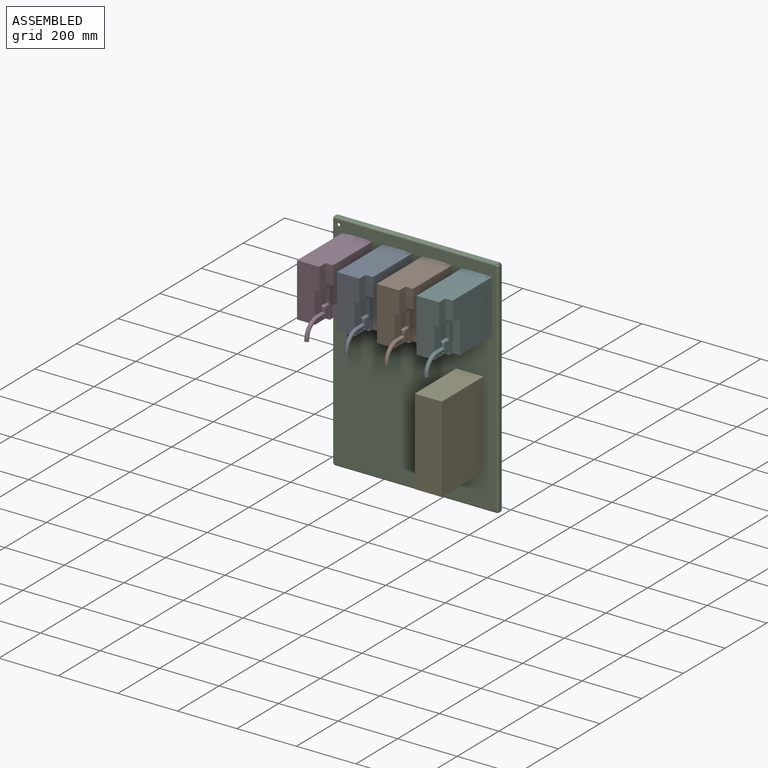
[diagram: assembled view]
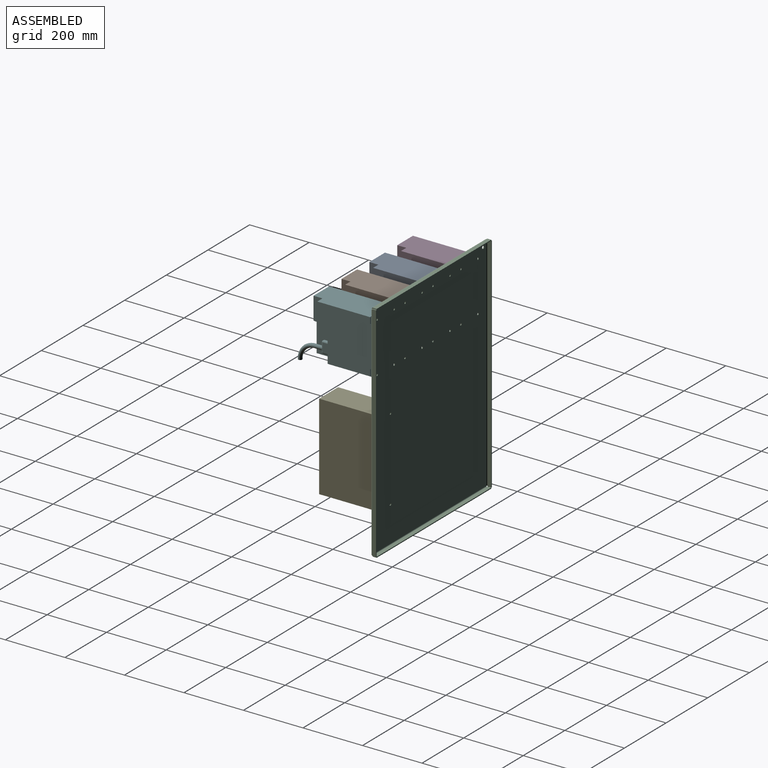
[diagram: assembled view, second angle]
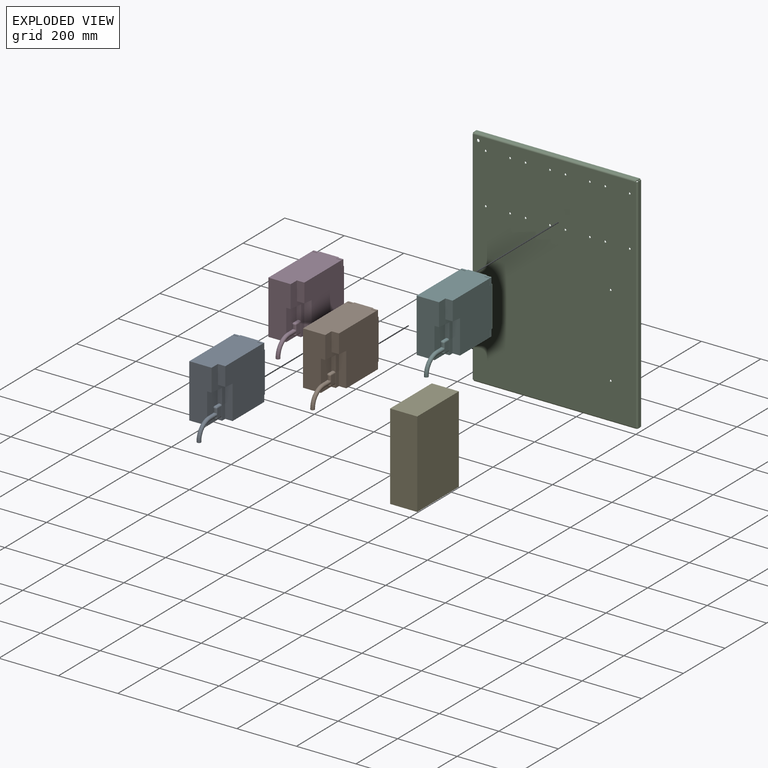
[diagram: exploded view]
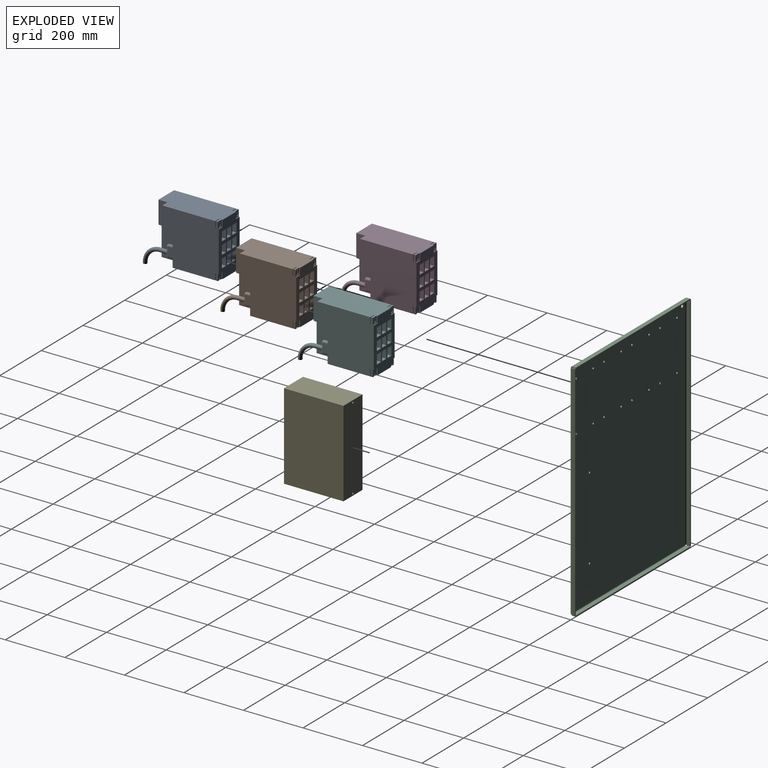
[diagram: exploded view, second angle]
ASSEMBLY  parts=6 mates=5
PART A: 136 faces, bbox 281.2x100x208.6 mm
  f0: plane 100x15mm, normal (1,0,0), area 1001.5mm2, adj f3,f53,f54,f58,f105,f107,f108,f109
  f1: plane 180x100mm, normal (-1,0,0), area 11016mm2, adj f2,f3,f4,f5,f15,f16,f18,f19
  f2: plane 220x100mm, normal (0,0,1), area 21070mm2, adj f1,f4,f5,f12,f16,f17,f18,f20
  f3: plane 220x100mm, normal (0,0,-1), area 19421mm2, adj f0,f1,f4,f5,f6,f7,f9,f10
  f4: plane 220x180mm, normal (0,-1,0), area 39380mm2, adj f1,f2,f3,f12,f19,f20,f22,f23
  f5: plane 190x180mm, normal (0,1,0), area 29945.3mm2, adj f1,f2,f3,f15,f17,f25,f26,f37
  f6: plane 6x2mm, normal (0,1,0), area 12mm2, adj f3,f8,f13,f26
  f7: plane 6x2mm, normal (0,-1,0), area 12mm2, adj f3,f8,f13,f26
  f8: cylinder r=3mm len=6mm, axis (-1,0,0), area 18.8mm2, adj f6,f7,f13,f26
  f9: plane 6x2mm, normal (0,1,0), area 12mm2, adj f3,f11,f14,f23
  f10: plane 6x2mm, normal (0,-1,0), area 12mm2, adj f3,f11,f14,f23
  f11: cylinder r=3mm len=6mm, axis (-1,0,0), area 18.8mm2, adj f9,f10,f14,f23
  f12: plane 180x75mm, normal (1,0,0), area 11934.4mm2, adj f2,f3,f4,f53,f54,f58
  f13: plane 9x6mm, normal (-1,0,0), area 50.1mm2, adj f3,f6,f7,f8
  f14: plane 9x6mm, normal (-1,0,0), area 50.1mm2, adj f3,f9,f10,f11
  f15: plane 18x3mm, normal (0,0,1), area 54mm2, adj f1,f5,f16,f17
  f16: plane 22x3mm, normal (0,1,0), area 66mm2, adj f1,f2,f15,f17
  f17: plane 22x18mm, normal (-1,0,0), area 270.8mm2, adj f2,f5,f15,f16,f28,f29,f30,f31
  f18: plane 22x3mm, normal (0,-1,0), area 66mm2, adj f1,f2,f19,f20
  f19: plane 18x3mm, normal (0,0,1), area 54mm2, adj f1,f4,f18,f20
  f20: plane 22x18mm, normal (-1,0,0), area 270.8mm2, adj f2,f4,f18,f19,f33,f34,f35,f36
  f21: plane 22x3mm, normal (0,-1,0), area 66mm2, adj f1,f3,f22,f23
  f22: plane 18x3mm, normal (0,0,-1), area 54mm2, adj f1,f4,f21,f23
  f23: plane 22x18mm, normal (-1,0,0), area 345.9mm2, adj f3,f4,f9,f10,f11,f21,f22
  f24: plane 22x3mm, normal (0,1,0), area 66mm2, adj f1,f3,f25,f26
  f25: plane 18x3mm, normal (0,0,-1), area 54mm2, adj f1,f5,f24,f26
  f26: plane 22x18mm, normal (-1,0,0), area 345.9mm2, adj f3,f5,f6,f7,f8,f24,f25
  f27: plane 16.5x11mm, normal (-1,0,0), area 125.2mm2, adj f28,f29,f30,f31
  f28: cylinder r=5.5mm len=11mm, axis (-1,0,0), area 52.8mm2, adj f17,f27,f29,f31
  f29: cylinder r=3mm len=3.08mm, axis (-1,0,0), area 6.7mm2, adj f17,f27,f28,f30
  f30: cylinder r=3mm len=6mm, axis (-1,0,0), area 22.4mm2, adj f17,f27,f29,f31
  f31: cylinder r=3mm len=3.08mm, axis (-1,0,0), area 6.7mm2, adj f17,f27,f28,f30
  f32: plane 16.5x11mm, normal (-1,0,0), area 125.2mm2, adj f33,f34,f35,f36
  f33: cylinder r=3mm len=3.08mm, axis (-1,0,0), area 6.7mm2, adj f20,f32,f34,f36
  f34: cylinder r=3mm len=6mm, axis (-1,0,0), area 22.4mm2, adj f20,f32,f33,f35
  f35: cylinder r=3mm len=3.08mm, axis (-1,0,0), area 6.7mm2, adj f20,f32,f34,f36
  f36: cylinder r=5.5mm len=11mm, axis (-1,0,0), area 52.8mm2, adj f20,f32,f33,f35
  f37: plane 18x2mm, normal (0,0,1), area 36mm2, adj f5,f38,f39,f40
  f38: plane 22x2mm, normal (0,1,0), area 44mm2, adj f2,f37,f39,f40
  f39: plane 22x18mm, normal (-1,0,0), area 396mm2, adj f2,f5,f37,f38
  f40: plane 22x18mm, normal (1,0,0), area 396mm2, adj f2,f5,f37,f38
  f41: plane 22x2mm, normal (0,1,0), area 44mm2, adj f3,f42,f43,f44
  f42: plane 18x2mm, normal (0,0,-1), area 36mm2, adj f5,f41,f43,f44
  f43: plane 22x18mm, normal (-1,0,0), area 396mm2, adj f3,f5,f41,f42
  f44: plane 22x18mm, normal (1,0,0), area 396mm2, adj f3,f5,f41,f42
  f45: plane 18x2mm, normal (0,0,1), area 36mm2, adj f4,f46,f47,f48
  f46: plane 22x2mm, normal (0,-1,0), area 44mm2, adj f2,f45,f47,f48
  f47: plane 22x18mm, normal (-1,0,0), area 396mm2, adj f2,f4,f45,f46
  f48: plane 22x18mm, normal (1,0,0), area 396mm2, adj f2,f4,f45,f46
  f49: plane 22x2mm, normal (0,-1,0), area 44mm2, adj f3,f50,f51,f52
  f50: plane 22x18mm, normal (-1,0,0), area 396mm2, adj f3,f4,f49,f52
  f51: plane 22x18mm, normal (1,0,0), area 396mm2, adj f3,f4,f49,f52
  f52: plane 18x2mm, normal (0,0,-1), area 36mm2, adj f4,f49,f50,f51
  f53: plane 104.37x50mm, normal (0,1,0), area 5109.4mm2, adj f0,f3,f12,f54
  f54: plane 50x15mm, normal (0.09,0,-1), area 752.9mm2, adj f0,f12,f53,f58
  f55: plane 113.75x25mm, normal (1,0,0), area 2843.6mm2, adj f3,f5,f56,f58
  f56: plane 35x25mm, normal (0.09,0,-1), area 878.3mm2, adj f5,f55,f57,f58
  f57: plane 63.19x25mm, normal (1,0,0), area 1579.8mm2, adj f2,f5,f56,f58
  f58: plane 180x65mm, normal (0,1,0), area 4325.3mm2, adj f0,f2,f3,f12,f54,f55,f56,f57
  f59: plane 20x15mm, normal (0,0,-1), area 300mm2, adj f1,f60,f62,f63
  f60: plane 30x15mm, normal (0,-1,0), area 450mm2, adj f1,f59,f61,f63
  f61: plane 20x15mm, normal (0,0,1), area 300mm2, adj f1,f60,f62,f63
  f62: plane 30x15mm, normal (0,1,0), area 450mm2, adj f1,f59,f61,f63
  f63: plane 30x20mm, normal (-1,0,0), area 600mm2, adj f59,f60,f61,f62
  f64: plane 20x15mm, normal (0,0,-1), area 300mm2, adj f1,f65,f67,f68
  f65: plane 30x15mm, normal (0,-1,0), area 450mm2, adj f1,f64,f66,f68
  f66: plane 20x15mm, normal (0,0,1), area 300mm2, adj f1,f65,f67,f68
  f67: plane 30x15mm, normal (0,1,0), area 450mm2, adj f1,f64,f66,f68
  f68: plane 30x20mm, normal (-1,0,0), area 600mm2, adj f64,f65,f66,f67
  f69: plane 20x15mm, normal (0,0,-1), area 300mm2, adj f1,f70,f72,f73
  f70: plane 30x15mm, normal (0,-1,0), area 450mm2, adj f1,f69,f71,f73
  f71: plane 20x15mm, normal (0,0,1), area 300mm2, adj f1,f70,f72,f73
  f72: plane 30x15mm, normal (0,1,0), area 450mm2, adj f1,f69,f71,f73
  f73: plane 30x20mm, normal (-1,0,0), area 600mm2, adj f69,f70,f71,f72
  f74: plane 20x15mm, normal (0,0,-1), area 300mm2, adj f1,f75,f77,f78
  f75: plane 30x15mm, normal (0,-1,0), area 450mm2, adj f1,f74,f76,f78
  f76: plane 20x15mm, normal (0,0,1), area 300mm2, adj f1,f75,f77,f78
  f77: plane 30x15mm, normal (0,1,0), area 450mm2, adj f1,f74,f76,f78
  f78: plane 30x20mm, normal (-1,0,0), area 600mm2, adj f74,f75,f76,f77
  f79: plane 30x15mm, normal (0,1,0), area 450mm2, adj f1,f80,f82,f83
  f80: plane 20x15mm, normal (0,0,-1), area 300mm2, adj f1,f79,f81,f83
  f81: plane 30x15mm, normal (0,-1,0), area 450mm2, adj f1,f80,f82,f83
  f82: plane 20x15mm, normal (0,0,1), area 300mm2, adj f1,f79,f81,f83
  f83: plane 30x20mm, normal (-1,0,0), area 600mm2, adj f79,f80,f81,f82
  f84: plane 20x15mm, normal (0,0,-1), area 300mm2, adj f1,f85,f87,f88
  f85: plane 30x15mm, normal (0,-1,0), area 450mm2, adj f1,f84,f86,f88
  f86: plane 20x15mm, normal (0,0,1), area 300mm2, adj f1,f85,f87,f88
  f87: plane 30x15mm, normal (0,1,0), area 450mm2, adj f1,f84,f86,f88
  f88: plane 30x20mm, normal (-1,0,0), area 600mm2, adj f84,f85,f86,f87
  f89: plane 20x15mm, normal (0,0,1), area 300mm2, adj f1,f90,f92,f93
  f90: plane 30x15mm, normal (0,1,0), area 450mm2, adj f1,f89,f91,f93
  f91: plane 20x15mm, normal (0,0,-1), area 300mm2, adj f1,f90,f92,f93
  f92: plane 30x15mm, normal (0,-1,0), area 450mm2, adj f1,f89,f91,f93
  f93: plane 30x20mm, normal (-1,0,0), area 600mm2, adj f89,f90,f91,f92
  f94: plane 20x15mm, normal (0,0,-1), area 300mm2, adj f1,f95,f97,f98
  f95: plane 30x15mm, normal (0,-1,0), area 450mm2, adj f1,f94,f96,f98
  f96: plane 20x15mm, normal (0,0,1), area 300mm2, adj f1,f95,f97,f98
  f97: plane 30x15mm, normal (0,1,0), area 450mm2, adj f1,f94,f96,f98
  f98: plane 30x20mm, normal (-1,0,0), area 600mm2, adj f94,f95,f96,f97
  f99: plane 20x15mm, normal (0,0,-1), area 300mm2, adj f1,f100,f102,f103
  f100: plane 30x15mm, normal (0,-1,0), area 450mm2, adj f1,f99,f101,f103
  f101: plane 20x15mm, normal (0,0,1), area 300mm2, adj f1,f100,f102,f103
  f102: plane 30x15mm, normal (0,1,0), area 450mm2, adj f1,f99,f101,f103
  f103: plane 30x20mm, normal (-1,0,0), area 600mm2, adj f99,f100,f101,f102
  f104: plane 13.68x3mm, normal (1,0,0), area 40.7mm2, adj f116,f129,f132,f133
  f105: plane 20x3mm, normal (0,0,1), area 60mm2, adj f0,f128,f132,f135
  f106: plane 3.68x3mm, normal (1,0,0), area 10.7mm2, adj f116,f120,f123,f125
  f107: plane 20x3mm, normal (0,0,-1), area 60mm2, adj f0,f119,f122,f123
  f108: plane 30x25mm, normal (0,-1,0), area 618.9mm2, adj f0,f118,f119,f120,f131,f133,f135
  f109: plane 30x25mm, normal (0,1,0), area 618.9mm2, adj f0,f122,f125,f126,f127,f128,f129
  f110: cylinder r=4.5mm len=9mm, axis (0,0,-1), area 101.8mm2, adj f111,f113
  f111: torus R=50mm, axis (0,1,0), area 2220.7mm2, adj f110,f112
  f112: cylinder r=4.5mm len=25mm, axis (1,0,0), area 706.9mm2, adj f111,f117
  f113: plane 13x13mm, normal (0,0,-1), area 69.1mm2, adj f110,f114
  f114: cylinder r=6.5mm len=13mm, axis (0,0,-1), area 147.1mm2, adj f113,f115
  f115: torus R=50mm, axis (0,1,0), area 3207.6mm2, adj f114,f116
  f116: cylinder r=6.5mm len=25mm, axis (1,0,0), area 1021mm2, adj f104,f106,f115,f118,f126,f127,f131
  f117: plane 9x9mm, normal (1,0,0), area 63.6mm2, adj f112
  f118: bspline ~6.95x5.14mm, area 25.7mm2, adj f108,f116,f120
  f119: cylinder r=5mm len=20mm, axis (1,0,0), area 157.1mm2, adj f0,f107,f108,f121
  f120: cylinder r=5mm len=5mm, axis (0,0,1), area 28.9mm2, adj f106,f108,f118,f121
  f121: sphere r=5mm, area 39.3mm2, adj f119,f120,f123
  f122: cylinder r=5mm len=20mm, axis (-1,0,0), area 157.1mm2, adj f0,f107,f109,f124
  f123: cylinder r=5mm len=5mm, axis (0,-1,0), area 23.6mm2, adj f106,f107,f121,f124
  f124: sphere r=5mm, area 39.3mm2, adj f122,f123,f125
  f125: cylinder r=5mm len=5mm, axis (0,0,-1), area 28.9mm2, adj f106,f109,f124,f126
  f126: bspline ~6.95x5.14mm, area 25.7mm2, adj f109,f116,f125
  f127: bspline ~6.95x5.14mm, area 25.7mm2, adj f109,f116,f129
  f128: cylinder r=5mm len=20mm, axis (1,0,0), area 157.1mm2, adj f0,f105,f109,f130
  f129: cylinder r=5mm len=13.68mm, axis (0,0,-1), area 107.4mm2, adj f104,f109,f127,f130
  f130: sphere r=5mm, area 39.3mm2, adj f128,f129,f132
  f131: bspline ~6.95x5.14mm, area 25.7mm2, adj f108,f116,f133
  f132: cylinder r=5mm len=5mm, axis (0,1,0), area 23.6mm2, adj f104,f105,f130,f134
  f133: cylinder r=5mm len=13.68mm, axis (0,0,1), area 107.4mm2, adj f104,f108,f131,f134
  f134: sphere r=5mm, area 39.3mm2, adj f132,f133,f135
  f135: cylinder r=5mm len=20mm, axis (-1,0,0), area 157.1mm2, adj f0,f105,f108,f134
PART B: same geometry as A
PART C: 65 faces, bbox 556x18x756 mm
  f0: plane 3x2.28mm, normal (0,-1,0), area 6.8mm2, adj f4,f5,f6,f62
  f1: plane 3x2.28mm, normal (0,-1,0), area 6.8mm2, adj f2,f5,f6,f61
  f2: plane 12.7x3mm, normal (1,0,0), area 38.1mm2, adj f1,f3,f5,f6
  f3: plane 549.96x3mm, normal (0,1,0), area 1649.9mm2, adj f2,f4,f5,f6
  f4: plane 12.7x3mm, normal (-1,0,0), area 38.1mm2, adj f0,f3,f5,f6
  f5: plane 549.96x12.7mm, normal (0,0,1), area 6984.5mm2, adj f0,f1,f2,f3,f4,f63
  f6: plane 549.96x12.7mm, normal (0,0,-1), area 6984.5mm2, adj f0,f1,f2,f3,f4,f64
  f7: cylinder r=3.5mm len=7mm, axis (0,-1,0), area 66mm2, adj f26,f27
  f8: cylinder r=3.5mm len=7mm, axis (0,-1,0), area 66mm2, adj f26,f27
  f9: cylinder r=3.5mm len=7mm, axis (0,-1,0), area 66mm2, adj f26,f27
  f10: cylinder r=3.5mm len=7mm, axis (0,-1,0), area 66mm2, adj f26,f27
  f11: cylinder r=3.5mm len=7mm, axis (0,-1,0), area 66mm2, adj f26,f27
  f12: cylinder r=3.5mm len=7mm, axis (0,-1,0), area 66mm2, adj f26,f27
  f13: cylinder r=3.5mm len=7mm, axis (0,-1,0), area 66mm2, adj f26,f27
  f14: cylinder r=3.5mm len=7mm, axis (0,-1,0), area 66mm2, adj f26,f27
  f15: cylinder r=3.5mm len=7mm, axis (0,-1,0), area 66mm2, adj f26,f27
  f16: cylinder r=3.5mm len=7mm, axis (0,-1,0), area 66mm2, adj f26,f27
  f17: cylinder r=3.5mm len=7mm, axis (0,-1,0), area 66mm2, adj f26,f27
  f18: cylinder r=3.5mm len=7mm, axis (0,-1,0), area 66mm2, adj f26,f27
  f19: cylinder r=3.5mm len=7mm, axis (0,-1,0), area 66mm2, adj f26,f27
  f20: cylinder r=3.5mm len=7mm, axis (0,-1,0), area 66mm2, adj f26,f27
  f21: cylinder r=3.5mm len=7mm, axis (0,-1,0), area 66mm2, adj f26,f27
  f22: cylinder r=3.5mm len=7mm, axis (0,-1,0), area 66mm2, adj f26,f27
  f23: cylinder r=3.5mm len=7mm, axis (0,-1,0), area 66mm2, adj f26,f27
  f24: cylinder r=3.5mm len=7mm, axis (0,-1,0), area 66mm2, adj f26,f27
  f25: cylinder r=5mm len=10mm, axis (0,-1,0), area 94.2mm2, adj f26,f27
  f26: plane 745.4x545.4mm, normal (0,-1,0), area 405769.9mm2, adj f7,f8,f9,f10,f11,f12,f13,f14
  f27: plane 745.4x545.4mm, normal (0,1,0), area 405769.9mm2, adj f7,f8,f9,f10,f11,f12,f13,f14
  f28: plane 3x2.28mm, normal (0,-1,0), area 6.8mm2, adj f32,f33,f34,f35
  f29: plane 3x2.28mm, normal (0,-1,0), area 6.8mm2, adj f30,f33,f34,f36
  f30: plane 12.7x3mm, normal (-1,0,0), area 38.1mm2, adj f29,f31,f33,f34
  f31: plane 549.96x3mm, normal (0,1,0), area 1649.9mm2, adj f30,f32,f33,f34
  f32: plane 12.7x3mm, normal (1,0,0), area 38.1mm2, adj f28,f31,f33,f34
  f33: plane 549.96x12.7mm, normal (0,0,-1), area 6984.5mm2, adj f28,f29,f30,f31,f32,f37
  f34: plane 549.96x12.7mm, normal (0,0,1), area 6984.5mm2, adj f28,f29,f30,f31,f32,f38
  f35: plane 5.3x5.3mm, normal (1,0,0), area 17.9mm2, adj f28,f37,f38,f57
  f36: plane 5.3x5.3mm, normal (-1,0,0), area 17.9mm2, adj f29,f37,f38,f46
  f37: cylinder r=5.3mm len=545.4mm, axis (1,0,0), area 4540.6mm2, adj f26,f33,f35,f36
  f38: cylinder r=2.3mm len=545.4mm, axis (1,0,0), area 1970.4mm2, adj f27,f34,f35,f36
  f39: plane 3x2.28mm, normal (0,-1,0), area 6.8mm2, adj f43,f44,f45,f46
  f40: plane 3x2.28mm, normal (0,-1,0), area 6.8mm2, adj f41,f44,f45,f47
  f41: plane 12.7x3mm, normal (0,0,1), area 38.1mm2, adj f40,f42,f44,f45
  f42: plane 749.96x3mm, normal (0,1,0), area 2249.9mm2, adj f41,f43,f44,f45
  f43: plane 12.7x3mm, normal (0,0,-1), area 38.1mm2, adj f39,f42,f44,f45
  f44: plane 749.96x12.7mm, normal (-1,0,0), area 9524.5mm2, adj f39,f40,f41,f42,f43,f48
  f45: plane 749.96x12.7mm, normal (1,0,0), area 9524.5mm2, adj f39,f40,f41,f42,f43,f49
  f46: plane 5.3x5.3mm, normal (0,0,-1), area 17.9mm2, adj f36,f39,f48,f49
  f47: plane 5.3x5.3mm, normal (0,0,1), area 17.9mm2, adj f40,f48,f49,f62
  f48: cylinder r=5.3mm len=745.4mm, axis (0,0,-1), area 6205.6mm2, adj f26,f44,f46,f47
  f49: cylinder r=2.3mm len=745.4mm, axis (0,0,-1), area 2693mm2, adj f27,f45,f46,f47
  f50: plane 3x2.28mm, normal (0,-1,0), area 6.8mm2, adj f54,f55,f56,f58
  f51: plane 3x2.28mm, normal (0,-1,0), area 6.8mm2, adj f52,f55,f56,f57
  f52: plane 12.7x3mm, normal (0,0,-1), area 38.1mm2, adj f51,f53,f55,f56
  f53: plane 749.96x3mm, normal (0,1,0), area 2249.9mm2, adj f52,f54,f55,f56
  f54: plane 12.7x3mm, normal (0,0,1), area 38.1mm2, adj f50,f53,f55,f56
  f55: plane 749.96x12.7mm, normal (1,0,0), area 9524.5mm2, adj f50,f51,f52,f53,f54,f59
  f56: plane 749.96x12.7mm, normal (-1,0,0), area 9524.5mm2, adj f50,f51,f52,f53,f54,f60
  f57: plane 5.3x5.3mm, normal (0,0,-1), area 17.9mm2, adj f35,f51,f59,f60
  f58: plane 5.3x5.3mm, normal (0,0,1), area 17.9mm2, adj f50,f59,f60,f61
  f59: cylinder r=5.3mm len=745.4mm, axis (0,0,-1), area 6205.6mm2, adj f26,f55,f57,f58
  f60: cylinder r=2.3mm len=745.4mm, axis (0,0,-1), area 2693mm2, adj f27,f56,f57,f58
  f61: plane 5.3x5.3mm, normal (1,0,0), area 17.9mm2, adj f1,f58,f63,f64
  f62: plane 5.3x5.3mm, normal (-1,0,0), area 17.9mm2, adj f0,f47,f63,f64
  f63: cylinder r=5.3mm len=545.4mm, axis (1,0,0), area 4540.6mm2, adj f5,f26,f61,f62
  f64: cylinder r=2.3mm len=545.4mm, axis (1,0,0), area 1970.4mm2, adj f6,f27,f61,f62
PART D: same geometry as A
PART E: 10 faces, bbox 91x200x290 mm
  f0: plane 290x200mm, normal (-1,0,0), area 58000mm2, adj f1,f3,f4,f5
  f1: plane 200x91mm, normal (0,0,-1), area 18200mm2, adj f0,f2,f4,f5
  f2: plane 290x200mm, normal (1,0,0), area 58000mm2, adj f1,f3,f4,f5
  f3: plane 200x91mm, normal (0,0,1), area 18200mm2, adj f0,f2,f4,f5
  f4: plane 290x91mm, normal (0,-1,0), area 26390mm2, adj f0,f1,f2,f3
  f5: plane 290x91mm, normal (0,1,0), area 26313mm2, adj f0,f1,f2,f3,f6,f8
  f6: cylinder r=3.5mm len=100mm, axis (0,1,0), area 2199.1mm2, adj f5,f7
  f7: cone r=0mm half-angle=59deg, axis (0,1,0), area 44.9mm2, adj f6
  f8: cylinder r=3.5mm len=100mm, axis (0,1,0), area 2199.1mm2, adj f5,f9
  f9: cone r=0mm half-angle=59deg, axis (0,1,0), area 44.9mm2, adj f8
PART F: same geometry as A
PLACE A rot(axis=(0,0,-1),90deg) t=(-130.46,-180.95,221.79)mm
PLACE B rot(axis=(0,0,-1),90deg) t=(3.54,-180.95,221.79)mm
PLACE C t=(-72.76,449.05,-26.91)mm
PLACE D rot(axis=(0,0,-1),90deg) t=(-264.46,-180.95,221.79)mm
PLACE E t=(114.54,-73.95,-142.21)mm
PLACE F rot(axis=(0,0,-1),90deg) t=(137.54,-180.95,221.79)mm
MATE fastened E.f6 <-> C.f8  axis (0,1,0) through (114.54,-73.95,-4.21)mm
MATE fastened F.f34 <-> C.f18  axis (0,1,0) through (96.54,-73.95,305.79)mm
MATE fastened A.f34 <-> C.f22  axis (0,1,0) through (-171.46,-73.95,305.79)mm
MATE fastened B.f34 <-> C.f20  axis (0,1,0) through (-37.46,-73.95,305.79)mm
MATE fastened D.f34 <-> C.f24  axis (0,1,0) through (-305.46,-73.95,305.79)mm
